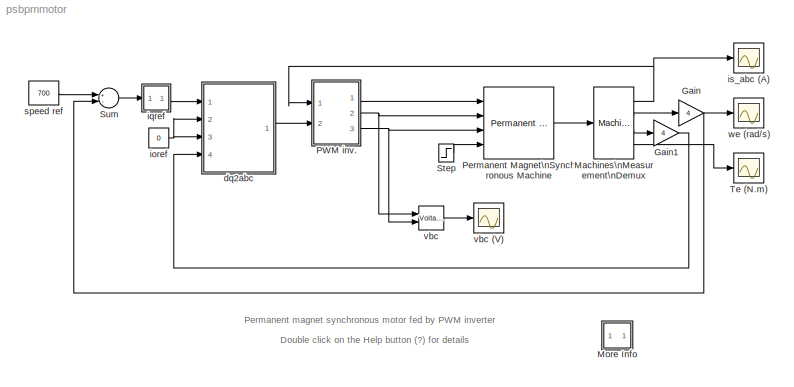
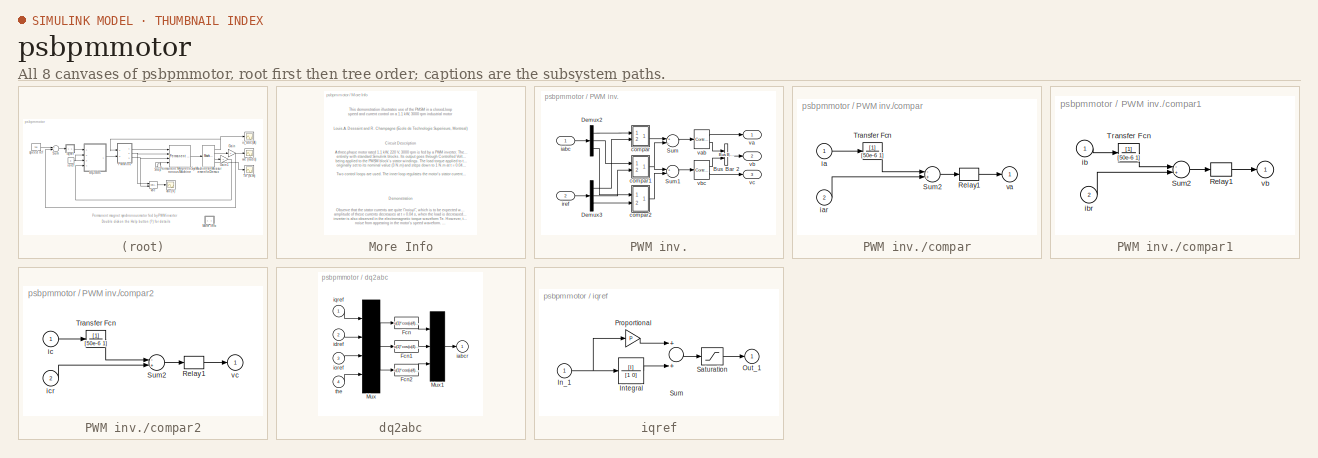
[diagram: thumbnail index - all 8 canvases of the model, root first then tree order]
MODEL psbpmmotor
KIND model
BLOCK [Gain] Gain
  Gain = 4
BLOCK [Gain] Gain1
  Gain = 4
BLOCK [Reference] Machines\nMeasurement\nDemux  REF=powerlib2/Machines/Machines\nMeasurement\nDemux
  Ports = [1, 4]
  SourceBlock = powerlib2/Machines/Machines\nMeasurement\nDemux
  SourceType = Machine measurements
  asm1 = on
  asm10 = on
  asm11 = on
  asm2 = on
  asm3 = on
  asm4 = on
  asm5 = on
  asm6 = on
  asm7 = on
  asm8 = on
  asm9 = on
  lastType = 4
  machType = Permanent magnet synchronous
  pmsm1 = on
  pmsm2 = off
  pmsm3 = off
  pmsm4 = on
  pmsm5 = on
  pmsm6 = on
  sm1 = on
  sm10 = on
  sm11 = on
  sm115 = off
  sm12 = off
  sm13 = off
  sm14 = off
  sm2 = on
  sm3 = on
  sm4 = on
  sm5 = on
  sm6 = on
  sm7 = on
  sm8 = on
  sm9 = on
  ssm1 = on
  ssm2 = on
  ssm3 = on
  ssm4 = on
  ssm5 = on
  ssm6 = on
BLOCK [SubSystem] More Info
  MaskDisplay = disp('?')
  MaskIconFrame = on
  MaskIconOpaque = on
  MaskIconRotate = none
  MaskIconUnits = autoscale
  MinAlgLoopOccurrences = off
  Ports = []
  RTWSystemCode = Auto
  TreatAsAtomicUnit = off
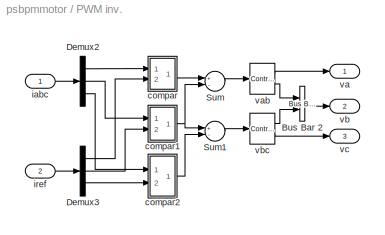
BLOCK [SubSystem] PWM inv.
  MinAlgLoopOccurrences = off
  Ports = [2, 3]
  RTWSystemCode = Auto
  TreatAsAtomicUnit = off
BLOCK [Reference] PWM inv./Bus Bar 2  REF=powerlib2/Connectors/Bus Bar (vert)
  PSBOutputType = 11111111111111111111111111111111111111111111111111111111111111111111111111111111111111111
  Ports = [2, 1]
  SourceBlock = powerlib2/Connectors/Bus Bar (vert)
  SourceType = Bus Bar
  Tag = PoWeRsYsTeMbLoCk
  entrees = 2
  sorties = 1
BLOCK [Demux] PWM inv./Demux2
  Outputs = 3
  Ports = [1, 3]
BLOCK [Demux] PWM inv./Demux3
  Outputs = 3
  Ports = [1, 3]
BLOCK [Sum] PWM inv./Sum
  Inputs = +-
  Ports = [2, 1]
BLOCK [Sum] PWM inv./Sum1
  Inputs = +-
  Ports = [2, 1]
BLOCK [SubSystem] PWM inv./compar
  MinAlgLoopOccurrences = off
  Ports = [2, 1]
  RTWSystemCode = Auto
  TreatAsAtomicUnit = off
BLOCK [Relay] PWM inv./compar/Relay1
  OffOutputValue = -155
  OffSwitchValue = -0.25
  OnOutputValue = 155
  OnSwitchValue = 0.25
BLOCK [Sum] PWM inv./compar/Sum2
  Inputs = -+
  Ports = [2, 1]
BLOCK [TransferFcn] PWM inv./compar/Transfer Fcn
  Denominator = [50e-6 1]
BLOCK [Inport] PWM inv./compar/ia
  IconDisplay = Port number
  LatchInput = off
  Port = 1
BLOCK [Inport] PWM inv./compar/iar
  IconDisplay = Port number
  LatchInput = off
  Port = 2
BLOCK [Outport] PWM inv./compar/va
  BusOutputAsStruct = off
  IconDisplay = Port number
  InitialOutput = 0
BLOCK [SubSystem] PWM inv./compar1
  MinAlgLoopOccurrences = off
  Ports = [2, 1]
  RTWSystemCode = Auto
  TreatAsAtomicUnit = off
BLOCK [Relay] PWM inv./compar1/Relay1
  OffOutputValue = -155
  OffSwitchValue = -0.25
  OnOutputValue = 155
  OnSwitchValue = 0.25
BLOCK [Sum] PWM inv./compar1/Sum2
  Inputs = -+
  Ports = [2, 1]
BLOCK [TransferFcn] PWM inv./compar1/Transfer Fcn
  Denominator = [50e-6 1]
BLOCK [Inport] PWM inv./compar1/ib
  IconDisplay = Port number
  LatchInput = off
  Port = 1
BLOCK [Inport] PWM inv./compar1/ibr
  IconDisplay = Port number
  LatchInput = off
  Port = 2
BLOCK [Outport] PWM inv./compar1/vb
  BusOutputAsStruct = off
  IconDisplay = Port number
  InitialOutput = 0
BLOCK [SubSystem] PWM inv./compar2
  MinAlgLoopOccurrences = off
  Ports = [2, 1]
  RTWSystemCode = Auto
  TreatAsAtomicUnit = off
BLOCK [Relay] PWM inv./compar2/Relay1
  OffOutputValue = -155
  OffSwitchValue = -0.25
  OnOutputValue = 155
  OnSwitchValue = 0.25
BLOCK [Sum] PWM inv./compar2/Sum2
  Inputs = -+
  Ports = [2, 1]
BLOCK [TransferFcn] PWM inv./compar2/Transfer Fcn
  Denominator = [50e-6 1]
BLOCK [Inport] PWM inv./compar2/ic
  IconDisplay = Port number
  LatchInput = off
  Port = 1
BLOCK [Inport] PWM inv./compar2/icr
  IconDisplay = Port number
  LatchInput = off
  Port = 2
BLOCK [Outport] PWM inv./compar2/vc
  BusOutputAsStruct = off
  IconDisplay = Port number
  InitialOutput = 0
BLOCK [Inport] PWM inv./iabc
  IconDisplay = Port number
  LatchInput = off
  Port = 1
BLOCK [Inport] PWM inv./iref
  IconDisplay = Port number
  LatchInput = off
  Port = 2
BLOCK [Outport] PWM inv./va
  BusOutputAsStruct = off
  IconDisplay = Port number
  InitialOutput = 0
BLOCK [Reference] PWM inv./vab  REF=powerlib2/Electrical\nSources/Controlled Voltage Source
  PSBOutputType = 11
  Ports = [1, 2]
  SourceBlock = powerlib2/Electrical\nSources/Controlled Voltage Source
  SourceType = Controlled Voltage Source
  Tag = PoWeRsYsTeMbLoCk
  ifreq = 0
  initsrc = on
  iph = 0
  iv = 0
  mesure = None
  srctyp = AC
BLOCK [Outport] PWM inv./vb
  BusOutputAsStruct = off
  IconDisplay = Port number
  InitialOutput = 0
  Port = 2
BLOCK [Reference] PWM inv./vbc  REF=powerlib2/Electrical\nSources/Controlled Voltage Source
  PSBOutputType = 11
  Ports = [1, 2]
  SourceBlock = powerlib2/Electrical\nSources/Controlled Voltage Source
  SourceType = Controlled Voltage Source
  Tag = PoWeRsYsTeMbLoCk
  ifreq = 0
  initsrc = on
  iph = 0
  iv = 0
  mesure = None
  srctyp = AC
BLOCK [Outport] PWM inv./vc
  BusOutputAsStruct = off
  IconDisplay = Port number
  InitialOutput = 0
  Port = 3
BLOCK [Reference] Permanent Magnet\nSynchronous Machine  REF=powerlib2/Machines/Permanent Magnet\nSynchronous Machine
  PSBOutputType = 0
  Ports = [4, 1]
  SourceBlock = powerlib2/Machines/Permanent Magnet\nSynchronous Machine
  SourceType = PM Synchronous Machine
  Tag = PoWeRsYsTeMbLoCk
  x1 = 2.875
  x2 = [8.5e-3, 8.5e-3]
  x3 = 0.175
  x4 = [ 0.8e-3, 0,  4 ]
BLOCK [Step] Step
  Before = 3
  SampleTime = 0
  Time = 0.04
BLOCK [Sum] Sum
  Inputs = +-
  Ports = [2, 1]
BLOCK [Scope] Te (N.m)
  DataFormat = Structure
  LimitDataPoints = off
  NumInputPorts = 1
  Ports = [1]
  TimeRange = 0.06
  YMax = 35
  YMin = -20
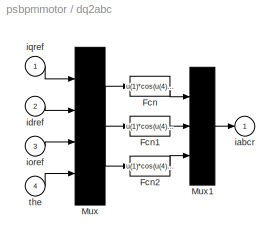
BLOCK [SubSystem] dq2abc
  MinAlgLoopOccurrences = off
  Ports = [4, 1]
  RTWSystemCode = Auto
  TreatAsAtomicUnit = off
BLOCK [Fcn] dq2abc/Fcn
  Expr = u(1)*cos(u(4)) + u(2)*sin(u(4)) + u(3)
BLOCK [Fcn] dq2abc/Fcn1
  Expr = u(1)*cos(u(4)-2*pi/3) + u(2)*sin(u(4)-2*pi/3) + u(3)
BLOCK [Fcn] dq2abc/Fcn2
  Expr = u(1)*cos(u(4)+2*pi/3) + u(2)*sin(u(4)+2*pi/3) + u(3)
BLOCK [Mux] dq2abc/Mux
  Ports = [4, 1]
BLOCK [Mux] dq2abc/Mux1
  Inputs = 3
  Ports = [3, 1]
BLOCK [Outport] dq2abc/iabcr
  BusOutputAsStruct = off
  IconDisplay = Port number
  InitialOutput = 0
BLOCK [Inport] dq2abc/idref
  IconDisplay = Port number
  LatchInput = off
  Port = 2
BLOCK [Inport] dq2abc/ioref
  IconDisplay = Port number
  LatchInput = off
  Port = 3
BLOCK [Inport] dq2abc/iqref
  IconDisplay = Port number
  LatchInput = off
  Port = 1
BLOCK [Inport] dq2abc/the
  IconDisplay = Port number
  LatchInput = off
  Port = 4
BLOCK [Constant] ioref
  Value = 0
BLOCK [SubSystem] iqref
  MaskCallbackString = ||
  MaskDisplay = disp('PI')
  MaskEnableString = on,on,on
  MaskIconFrame = on
  MaskIconOpaque = on
  MaskIconRotate = none
  MaskIconUnits = autoscale
  MaskInitialization = I=@1;P=@2;sat=@3;min=sat(1);max=sat(2);
  MaskPromptString = Integral|Proportional:|Minimum and maximum outputs:
  MaskStyleString = edit,edit,edit
  MaskTabNameString = ,,
  MaskToolTipString = on,on,on
  MaskTunableValueString = on,on,on
  MaskType = PI Controller
  MaskValueString = 2.6|50| [-30, 30]
  MaskVarAliasString = ,,
  MaskVisibilityString = on,on,on
  MinAlgLoopOccurrences = off
  Ports = [1, 1]
  RTWSystemCode = Auto
  TreatAsAtomicUnit = off
BLOCK [Inport] iqref/In_1
  IconDisplay = Port number
  LatchInput = off
  Port = 1
BLOCK [TransferFcn] iqref/Integral
  Denominator = [1 0]
  Numerator = [I]
BLOCK [Outport] iqref/Out_1
  BusOutputAsStruct = off
  IconDisplay = Port number
  InitialOutput = 0
BLOCK [Gain] iqref/Proportional
  Gain = P
BLOCK [Saturate] iqref/Saturation
  LowerLimit = min
  UpperLimit = max
BLOCK [Sum] iqref/Sum
  Ports = [2, 1]
BLOCK [Scope] is_abc (A)
  DataFormat = Structure
  LimitDataPoints = off
  NumInputPorts = 1
  Ports = [1]
  TimeRange = 0.06
  YMax = 35
  YMin = -30
BLOCK [Constant] speed ref
  Value = 700
BLOCK [Reference] vbc  REF=powerlib2/Measurements/Voltage Measurement
  OutputType = Magnitude
  PSBOutputType = 0
  PSBequivalent = 0
  PhasorSimulation = off
  Ports = [2, 1]
  SourceBlock = powerlib2/Measurements/Voltage Measurement
  SourceType = Voltage Measurement
  Tag = PoWeRsYsTeMmEaSuReMeNt
BLOCK [Scope] vbc (V)
  DataFormat = Structure
  LimitDataPoints = off
  NumInputPorts = 1
  Ports = [1]
  TimeRange = 0.06
  YMax = 500
  YMin = -500
BLOCK [Scope] we (rad//s)
  DataFormat = Structure
  LimitDataPoints = off
  NumInputPorts = 1
  Ports = [1]
  TimeRange = 0.06
  YMax = 800
  YMin = 0
ANNOTATION (root): Double click on the Help button (?) for details
ANNOTATION (root): Permanent magnet synchronous motor fed by PWM inverter
ANNOTATION More Info: A three-phase motor rated 1.1 kW, 220 V, 3000 rpm is fed by a PWM inverter. The PWM inverter is built \nentirely with standard Simulink blocks. Its output goes through Controlled Voltage Source blocks before \nbeing applied to the PMSM block's stator windings. The load torque applied to the machine's shaft is \noriginally set to its nominal value (3 N.m) and steps down to 1 N.m at t = 0.04 s. \n\n...<+126ch>
ANNOTATION More Info: Circuit Description
ANNOTATION More Info: Demonstration
ANNOTATION More Info: Louis-A. Dessaint and R. Champagne (Ecole de Technologie Superieure, Montreal)
ANNOTATION More Info: Observe that the stator currents are quite \"noisy\", which is to be expected when using PWM inverters. Also, the \namplitude of these currents decreases at t = 0.04 s, when the load is decreased. The noise introduced by the PWM\ninverter is also observed in the electromagnetic torque waveform Te. However, the motor's inertia prevents this\nnoise from appearing in the motor's speed waveform.
ANNOTATION More Info: This demonstration illustrates use of the PMSM in a closed-loop\nspeed and current control on a 1.1 kW, 3000 rpm industrial motor
LINE Gain1:1 -> dq2abc:4
NET Gain:1 -> Sum:2, we (rad//s):1
NET Machines\nMeasurement\nDemux:1 -> PWM inv.:1, is_abc (A):1
LINE Machines\nMeasurement\nDemux:2 -> Gain:1
LINE Machines\nMeasurement\nDemux:3 -> Gain1:1
LINE Machines\nMeasurement\nDemux:4 -> Te (N.m):1
LINE PWM inv./Bus Bar 2:1 -> PWM inv./vb:1
LINE PWM inv./Demux2:1 -> PWM inv./compar:1
LINE PWM inv./Demux2:2 -> PWM inv./compar1:1
LINE PWM inv./Demux2:3 -> PWM inv./compar2:1
LINE PWM inv./Demux3:1 -> PWM inv./compar:2
LINE PWM inv./Demux3:2 -> PWM inv./compar1:2
LINE PWM inv./Demux3:3 -> PWM inv./compar2:2
LINE PWM inv./Sum1:1 -> PWM inv./vbc:1
LINE PWM inv./Sum:1 -> PWM inv./vab:1
LINE PWM inv./compar/Relay1:1 -> PWM inv./compar/va:1
LINE PWM inv./compar/Sum2:1 -> PWM inv./compar/Relay1:1
LINE PWM inv./compar/Transfer Fcn:1 -> PWM inv./compar/Sum2:1
LINE PWM inv./compar/ia:1 -> PWM inv./compar/Transfer Fcn:1
LINE PWM inv./compar/iar:1 -> PWM inv./compar/Sum2:2
LINE PWM inv./compar1/Relay1:1 -> PWM inv./compar1/vb:1
LINE PWM inv./compar1/Sum2:1 -> PWM inv./compar1/Relay1:1
LINE PWM inv./compar1/Transfer Fcn:1 -> PWM inv./compar1/Sum2:1
LINE PWM inv./compar1/ib:1 -> PWM inv./compar1/Transfer Fcn:1
LINE PWM inv./compar1/ibr:1 -> PWM inv./compar1/Sum2:2
NET PWM inv./compar1:1 -> PWM inv./Sum1:1, PWM inv./Sum:2
LINE PWM inv./compar2/Relay1:1 -> PWM inv./compar2/vc:1
LINE PWM inv./compar2/Sum2:1 -> PWM inv./compar2/Relay1:1
LINE PWM inv./compar2/Transfer Fcn:1 -> PWM inv./compar2/Sum2:1
LINE PWM inv./compar2/ic:1 -> PWM inv./compar2/Transfer Fcn:1
LINE PWM inv./compar2/icr:1 -> PWM inv./compar2/Sum2:2
LINE PWM inv./compar2:1 -> PWM inv./Sum1:2
LINE PWM inv./compar:1 -> PWM inv./Sum:1
LINE PWM inv./iabc:1 -> PWM inv./Demux2:1
LINE PWM inv./iref:1 -> PWM inv./Demux3:1
LINE PWM inv./vab:1 -> PWM inv./va:1
LINE PWM inv./vab:2 -> PWM inv./Bus Bar 2:1
LINE PWM inv./vbc:1 -> PWM inv./Bus Bar 2:2
LINE PWM inv./vbc:2 -> PWM inv./vc:1
LINE PWM inv.:1 -> Permanent Magnet\nSynchronous Machine:1
NET PWM inv.:2 -> Permanent Magnet\nSynchronous Machine:2, vbc:1
NET PWM inv.:3 -> Permanent Magnet\nSynchronous Machine:3, vbc:2
LINE Permanent Magnet\nSynchronous Machine:1 -> Machines\nMeasurement\nDemux:1
LINE Step:1 -> Permanent Magnet\nSynchronous Machine:4
LINE Sum:1 -> iqref:1
LINE dq2abc/Fcn1:1 -> dq2abc/Mux1:2
LINE dq2abc/Fcn2:1 -> dq2abc/Mux1:3
LINE dq2abc/Fcn:1 -> dq2abc/Mux1:1
LINE dq2abc/Mux1:1 -> dq2abc/iabcr:1
NET dq2abc/Mux:1 -> dq2abc/Fcn1:1, dq2abc/Fcn2:1, dq2abc/Fcn:1
LINE dq2abc/idref:1 -> dq2abc/Mux:2
LINE dq2abc/ioref:1 -> dq2abc/Mux:3
LINE dq2abc/iqref:1 -> dq2abc/Mux:1
LINE dq2abc/the:1 -> dq2abc/Mux:4
LINE dq2abc:1 -> PWM inv.:2
NET ioref:1 -> dq2abc:2, dq2abc:3
NET iqref/In_1:1 -> iqref/Integral:1, iqref/Proportional:1
LINE iqref/Integral:1 -> iqref/Sum:2
LINE iqref/Proportional:1 -> iqref/Sum:1
LINE iqref/Saturation:1 -> iqref/Out_1:1
LINE iqref/Sum:1 -> iqref/Saturation:1
LINE iqref:1 -> dq2abc:1
LINE speed ref:1 -> Sum:1
LINE vbc:1 -> vbc (V):1
note: NET lines group one-source signal fan-out (src -> all destinations, sorted); 1:1 wires keep LINE
